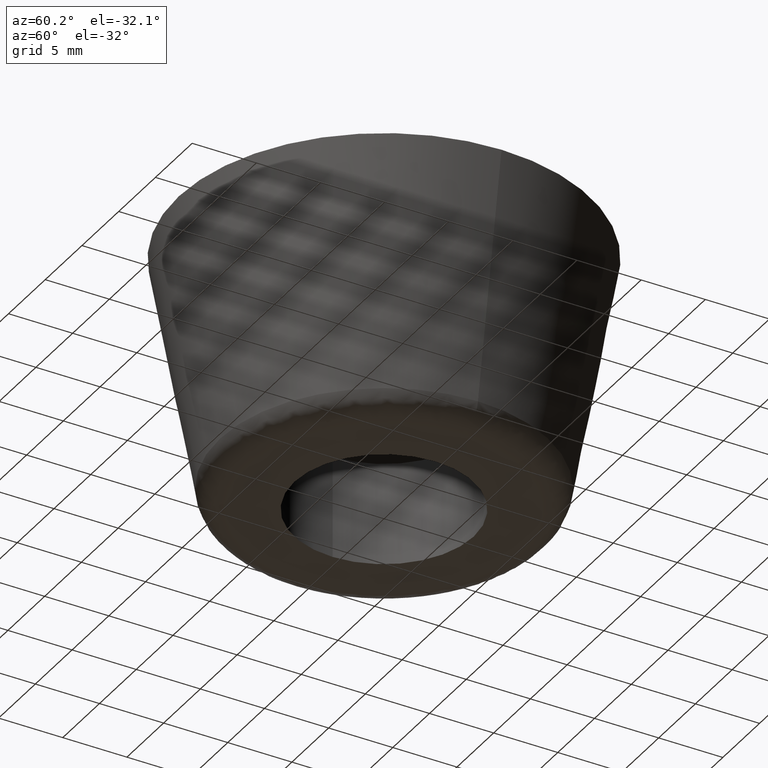
[diagram: clean part render]
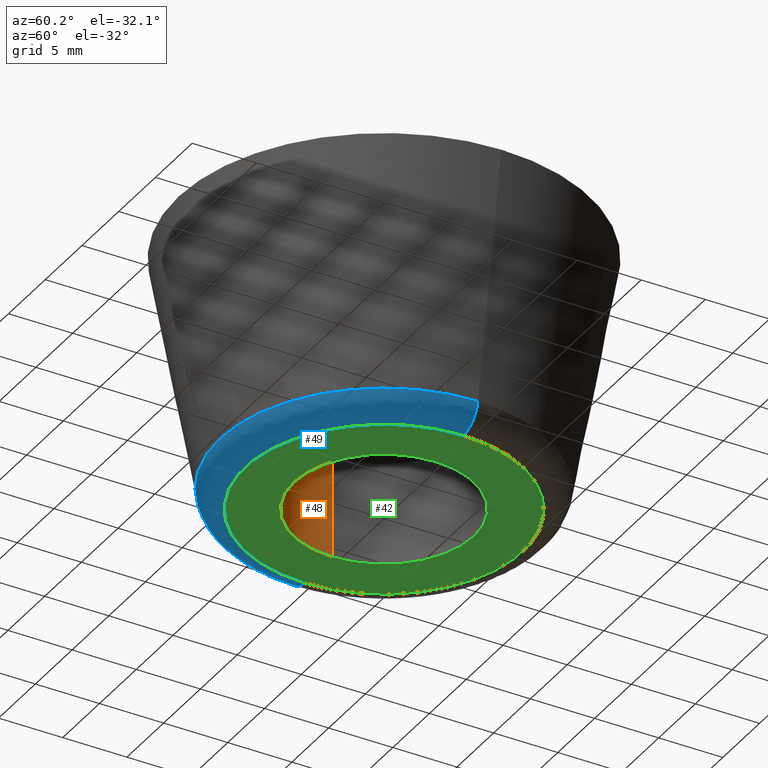
[diagram: same view with three faces highlighted in distinct colors, each labeled with its STEP entity id]
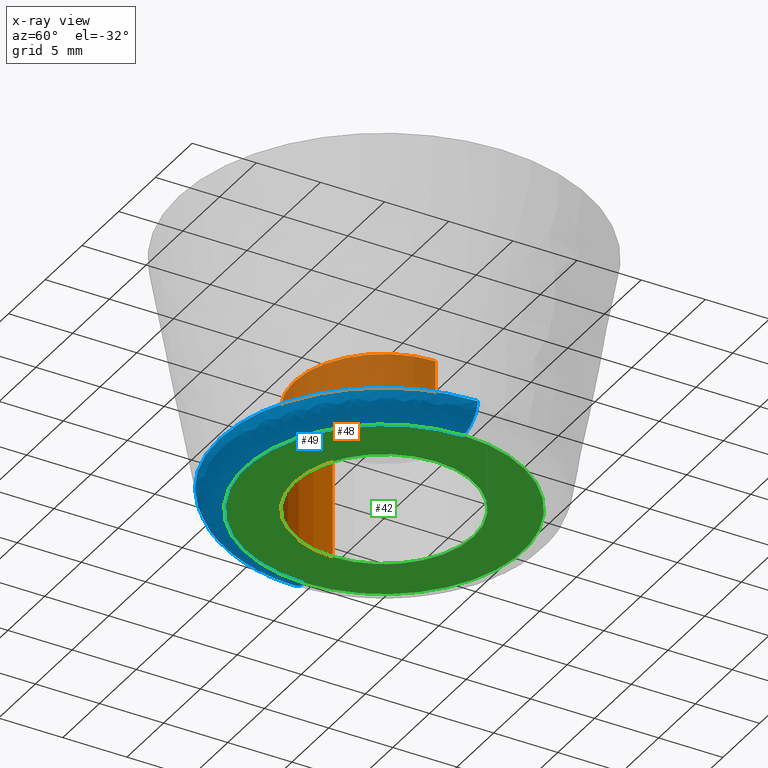
[diagram: x-ray of the same camera — body ghosted, the three highlighted faces saturated]
A machine part, auxiliary view with three faces highlighted in distinct colors.
The next image is the same camera in x-ray (body ghosted, the three faces saturated) — at least one of them is partly hidden behind the body in this view.
Their STEP definitions:

[orange] entity #48 — the highlighted cylindrical surface (partial cylindrical patch) has radius 7 mm, axis along (0, -0, 1).
#48=ADVANCED_FACE('',(#135),#134,.F.);
#134=CYLINDRICAL_SURFACE('',#222,7.00000000000E+00);
#135=FACE_OUTER_BOUND('',#223,.T.);
#219=CARTESIAN_POINT('',(-3.55271367880E-14,0.00000000000E+00,0.00000000000E+00));
#220=DIRECTION('',(0.00000000000E+00,-0.00000000000E+00,1.00000000000E+00));
#221=DIRECTION('',(1.00000000000E+00,-0.00000000000E+00,-0.00000000000E+00));
#222=AXIS2_PLACEMENT_3D('',#219,#220,#221);
#223=EDGE_LOOP('',(#308,#309,#310,#311));
#308=ORIENTED_EDGE('',*,*,#325,.F.);
#309=ORIENTED_EDGE('',*,*,#338,.F.);
#310=ORIENTED_EDGE('',*,*,#330,.T.);
#311=ORIENTED_EDGE('',*,*,#339,.T.);
#325=EDGE_CURVE('',#371,#370,#378,.T.);
#330=EDGE_CURVE('',#412,#413,#414,.T.);
#338=EDGE_CURVE('',#412,#371,#464,.T.);
#339=EDGE_CURVE('',#413,#370,#470,.T.);
#370=VERTEX_POINT('',#508);
#371=VERTEX_POINT('',#509);
#378=CIRCLE('',#517,7.00000000000E+00);
#412=VERTEX_POINT('',#538);
#413=VERTEX_POINT('',#539);
#414=CIRCLE('',#543,7.00000000000E+00);
#464=(BOUNDED_CURVE() B_SPLINE_CURVE(1,(#566,#567),.UNSPECIFIED.,.F.,.F.) B_SPLINE_CURVE_WITH_KNOTS((2,2),(8.33333366442E-02,9.16666667899E-01),.UNSPECIFIED.) CURVE() GEOMETRIC_REPRESENTATION_ITEM() RATIONAL_B_SPLINE_CURVE((1.00000000000E+00,1.00000000000E+00)) REPRESENTATION_ITEM('') );
#470=(BOUNDED_CURVE() B_SPLINE_CURVE(1,(#568,#569),.UNSPECIFIED.,.F.,.F.) B_SPLINE_CURVE_WITH_KNOTS((2,2),(8.33333333333E-02,9.16666666667E-01),.UNSPECIFIED.) CURVE() GEOMETRIC_REPRESENTATION_ITEM() RATIONAL_B_SPLINE_CURVE((7.50000000000E-01,7.50000000000E-01)) REPRESENTATION_ITEM('') );
#508=CARTESIAN_POINT('',(-7.00000000000E+00,0.00000000000E+00,-1.20000000000E+01));
#509=CARTESIAN_POINT('',(7.00000000000E+00,0.00000000000E+00,-1.20000000000E+01));
#514=CARTESIAN_POINT('',(-3.55271367880E-14,0.00000000000E+00,-1.20000000000E+01));
#515=DIRECTION('',(-0.00000000000E+00,0.00000000000E+00,-1.00000000000E+00));
#516=DIRECTION('',(-1.00000000000E+00,-1.22460635382E-16,0.00000000000E+00));
#517=AXIS2_PLACEMENT_3D('',#514,#515,#516);
#538=CARTESIAN_POINT('',(7.00000000000E+00,0.00000000000E+00,-2.00000000000E+01));
#539=CARTESIAN_POINT('',(-7.00000000000E+00,0.00000000000E+00,-2.00000000000E+01));
#540=CARTESIAN_POINT('',(-3.55271367880E-14,0.00000000000E+00,-2.00000000000E+01));
#541=DIRECTION('',(-0.00000000000E+00,0.00000000000E+00,-1.00000000000E+00));
#542=DIRECTION('',(-1.00000000000E+00,-1.22460635382E-16,0.00000000000E+00));
#543=AXIS2_PLACEMENT_3D('',#540,#541,#542);
#566=CARTESIAN_POINT('',(7.00000000000E+00,0.00000000000E+00,-1.99999999682E+01));
#567=CARTESIAN_POINT('',(7.00000000000E+00,0.00000000000E+00,-1.19999999882E+01));
#568=CARTESIAN_POINT('',(-7.00000000000E+00,-2.96059473233E-16,-2.00000000000E+01));
#569=CARTESIAN_POINT('',(-7.00000000000E+00,-2.96059473233E-16,-1.20000000000E+01));

[blue] entity #49 — the highlighted face is a freeform B-spline surface patch.
#49=ADVANCED_FACE('',(#145),#144,.T.);
#144=( BOUNDED_SURFACE() B_SPLINE_SURFACE( 2,2,((#224,#225,#226,#227,#228),(#229,#230,#231,#232,#233),(#234,#235,#236,#237,#238),(#239,#240,#241,#242,#243),(#244,#245,#246,#247,#248)), .UNSPECIFIED.,.F.,.F.,.F.) B_SPLINE_SURFACE_WITH_KNOTS((3,2,3),(3,2,3),(0.00000000000E+00,5.00000000000E-01,1.00000000000E+00),(0.00000000000E+00,5.00000000000E-01,1.00000000000E+00), .UNSPECIFIED. ) GEOMETRIC_REPRESENTATION_ITEM() RATIONAL_B_SPLINE_SURFACE(((1.00000000000E+00,7.65630567491E-01,1.00000000000E+00,7.65630567491E-01,1.00000000000E+00),(7.07106781187E-01,5.41382566156E-01,7.07106781187E-01,5.41382566156E-01,7.07106781187E-01),(1.00000000000E+00,7.65630567491E-01,1.00000000000E+00,7.65630567491E-01,1.00000000000E+00),(7.07106781187E-01,5.41382566156E-01,7.07106781187E-01,5.41382566156E-01,7.07106781187E-01),(1.00000000000E+00,7.65630567491E-01,1.00000000000E+00,7.65630567491E-01,1.00000000000E+00))) REPRESENTATION_ITEM('') SURFACE() );
#145=FACE_OUTER_BOUND('',#249,.T.);
#224=CARTESIAN_POINT('',(1.27896668839E+01,-1.56623073293E-15,-1.83447606635E+01));
#225=CARTESIAN_POINT('',(1.25000000000E+01,-1.53075794228E-15,-2.00000000000E+01));
#226=CARTESIAN_POINT('',(1.08196059496E+01,-1.32497581917E-15,-2.00000000000E+01));
#227=CARTESIAN_POINT('',(9.13921189915E+00,-1.11919369606E-15,-2.00000000000E+01));
#228=CARTESIAN_POINT('',(8.84954501526E+00,-1.08372090541E-15,-1.83447606635E+01));
#229=CARTESIAN_POINT('',(1.27896668839E+01,-1.27896668839E+01,-1.83447606635E+01));
#230=CARTESIAN_POINT('',(1.25000000000E+01,-1.25000000000E+01,-2.00000000000E+01));
#231=CARTESIAN_POINT('',(1.08196059496E+01,-1.08196059496E+01,-2.00000000000E+01));
#232=CARTESIAN_POINT('',(9.13921189915E+00,-9.13921189915E+00,-2.00000000000E+01));
#233=CARTESIAN_POINT('',(8.84954501526E+00,-8.84954501526E+00,-1.83447606635E+01));
#234=CARTESIAN_POINT('',(-3.54775590219E-14,-1.27896668839E+01,-1.83447606635E+01));
#235=CARTESIAN_POINT('',(-3.54598232123E-14,-1.25000000000E+01,-2.00000000000E+01));
#236=CARTESIAN_POINT('',(-3.53569355490E-14,-1.08196059496E+01,-2.00000000000E+01));
#237=CARTESIAN_POINT('',(-3.52540478856E-14,-9.13921189915E+00,-2.00000000000E+01));
#238=CARTESIAN_POINT('',(-3.52363120761E-14,-8.84954501526E+00,-1.83447606635E+01));
#239=CARTESIAN_POINT('',(-1.27896668839E+01,-1.27896668839E+01,-1.83447606635E+01));
#240=CARTESIAN_POINT('',(-1.25000000000E+01,-1.25000000000E+01,-2.00000000000E+01));
#241=CARTESIAN_POINT('',(-1.08196059496E+01,-1.08196059496E+01,-2.00000000000E+01));
#242=CARTESIAN_POINT('',(-9.13921189915E+00,-9.13921189915E+00,-2.00000000000E+01));
#243=CARTESIAN_POINT('',(-8.84954501526E+00,-8.84954501526E+00,-1.83447606635E+01));
#244=CARTESIAN_POINT('',(-1.27896668839E+01,-5.17282233454E-20,-1.83447606635E+01));
#245=CARTESIAN_POINT('',(-1.25000000000E+01,-5.05566562198E-20,-2.00000000000E+01));
#246=CARTESIAN_POINT('',(-1.08196059496E+01,-4.37602478745E-20,-2.00000000000E+01));
#247=CARTESIAN_POINT('',(-9.13921189915E+00,-3.69638395284E-20,-2.00000000000E+01));
#248=CARTESIAN_POINT('',(-8.84954501526E+00,-3.57922724032E-20,-1.83447606635E+01));
#249=EDGE_LOOP('',(#312,#313,#314,#315));
#312=ORIENTED_EDGE('',*,*,#329,.F.);
#313=ORIENTED_EDGE('',*,*,#340,.F.);
#314=ORIENTED_EDGE('',*,*,#333,.T.);
#315=ORIENTED_EDGE('',*,*,#341,.T.);
#329=EDGE_CURVE('',#399,#398,#406,.T.);
#333=EDGE_CURVE('',#433,#426,#434,.T.);
#340=EDGE_CURVE('',#433,#399,#476,.T.);
#341=EDGE_CURVE('',#426,#398,#482,.T.);
#398=VERTEX_POINT('',#528);
#399=VERTEX_POINT('',#529);
#406=CIRCLE('',#537,1.08196059496E+01);
#426=VERTEX_POINT('',#548);
#433=VERTEX_POINT('',#551);
#434=CIRCLE('',#555,1.27896668839E+01);
#476=(BOUNDED_CURVE() B_SPLINE_CURVE(2,(#570,#571,#572),.UNSPECIFIED.,.F.,.F.) B_SPLINE_CURVE_WITH_KNOTS((3,3),(0.00000000000E+00,5.00000000000E-01),.UNSPECIFIED.) CURVE() GEOMETRIC_REPRESENTATION_ITEM() RATIONAL_B_SPLINE_CURVE((1.00000000000E+00,7.65630567491E-01,1.00000000000E+00)) REPRESENTATION_ITEM('') );
#482=(BOUNDED_CURVE() B_SPLINE_CURVE(3,(#573,#574,#575,#576,#577),.UNSPECIFIED.,.F.,.F.) B_SPLINE_CURVE_WITH_KNOTS((4,1,4),(0.00000000000E+00,2.50000001530E-01,5.00000002731E-01),.UNSPECIFIED.) CURVE() GEOMETRIC_REPRESENTATION_ITEM() RATIONAL_B_SPLINE_CURVE((1.00000000000E+00,1.00000000000E+00,1.00000000000E+00,1.00000000000E+00,1.00000000000E+00)) REPRESENTATION_ITEM('') );
#528=CARTESIAN_POINT('',(-1.08196059496E+01,0.00000000000E+00,-2.00000000000E+01));
#529=CARTESIAN_POINT('',(1.08196059496E+01,5.92118946467E-16,-2.00000000000E+01));
#534=CARTESIAN_POINT('',(-3.55271367880E-14,0.00000000000E+00,-2.00000000000E+01));
#535=DIRECTION('',(-0.00000000000E+00,0.00000000000E+00,-1.00000000000E+00));
#536=DIRECTION('',(-1.00000000000E+00,-1.22460635382E-16,0.00000000000E+00));
#537=AXIS2_PLACEMENT_3D('',#534,#535,#536);
#548=CARTESIAN_POINT('',(-1.27896668839E+01,0.00000000000E+00,-1.83447606635E+01));
#551=CARTESIAN_POINT('',(1.27896668839E+01,0.00000000000E+00,-1.83447606635E+01));
#552=CARTESIAN_POINT('',(-3.55271367880E-14,0.00000000000E+00,-1.83447606635E+01));
#553=DIRECTION('',(-0.00000000000E+00,0.00000000000E+00,-1.00000000000E+00));
#554=DIRECTION('',(-1.00000000000E+00,-1.22460635382E-16,0.00000000000E+00));
#555=AXIS2_PLACEMENT_3D('',#552,#553,#554);
#570=CARTESIAN_POINT('',(1.27896668839E+01,-1.56623073293E-15,-1.83447606635E+01));
#571=CARTESIAN_POINT('',(1.25000000000E+01,-1.53075794228E-15,-2.00000000000E+01));
#572=CARTESIAN_POINT('',(1.08196059496E+01,-1.32497581917E-15,-2.00000000000E+01));
#573=CARTESIAN_POINT('',(-1.27896668839E+01,1.77635683940E-15,-1.83447606635E+01));
#574=CARTESIAN_POINT('',(-1.27126759136E+01,1.71371037529E-15,-1.88007398711E+01));
#575=CARTESIAN_POINT('',(-1.22149804941E+01,1.51951110708E-15,-1.96607706444E+01));
#576=CARTESIAN_POINT('',(-1.12820310758E+01,1.28371762880E-15,-2.00027633989E+01));
#577=CARTESIAN_POINT('',(-1.08196059355E+01,1.18423788950E-15,-2.00000000000E+01));

[green] entity #42 — the highlighted planar face has unit normal (-0, 0, -1).
#42=ADVANCED_FACE('',(#74,#75),#73,.T.);
#73=PLANE('',#179);
#74=FACE_OUTER_BOUND('',#180,.T.);
#75=FACE_BOUND('',#181,.T.);
#176=CARTESIAN_POINT('',(2.48850936840E+01,-2.24881286670E+01,-2.00000000000E+01));
#177=DIRECTION('',(-0.00000000000E+00,0.00000000000E+00,-1.00000000000E+00));
#178=DIRECTION('',(-1.00000000000E+00,0.00000000000E+00,0.00000000000E+00));
#179=AXIS2_PLACEMENT_3D('',#176,#177,#178);
#180=EDGE_LOOP('',(#284,#285));
#181=EDGE_LOOP('',(#286,#287));
#284=ORIENTED_EDGE('',*,*,#328,.T.);
#285=ORIENTED_EDGE('',*,*,#329,.T.);
#286=ORIENTED_EDGE('',*,*,#330,.F.);
#287=ORIENTED_EDGE('',*,*,#331,.F.);
#328=EDGE_CURVE('',#398,#399,#400,.T.);
#329=EDGE_CURVE('',#399,#398,#406,.T.);
#330=EDGE_CURVE('',#412,#413,#414,.T.);
#331=EDGE_CURVE('',#413,#412,#420,.T.);
#398=VERTEX_POINT('',#528);
#399=VERTEX_POINT('',#529);
#400=CIRCLE('',#533,1.08196059496E+01);
#406=CIRCLE('',#537,1.08196059496E+01);
#412=VERTEX_POINT('',#538);
#413=VERTEX_POINT('',#539);
#414=CIRCLE('',#543,7.00000000000E+00);
#420=CIRCLE('',#547,7.00000000000E+00);
#528=CARTESIAN_POINT('',(-1.08196059496E+01,0.00000000000E+00,-2.00000000000E+01));
#529=CARTESIAN_POINT('',(1.08196059496E+01,5.92118946467E-16,-2.00000000000E+01));
#530=CARTESIAN_POINT('',(-3.55271367880E-14,0.00000000000E+00,-2.00000000000E+01));
#531=DIRECTION('',(-0.00000000000E+00,0.00000000000E+00,-1.00000000000E+00));
#532=DIRECTION('',(-1.00000000000E+00,-1.22460635382E-16,0.00000000000E+00));
#533=AXIS2_PLACEMENT_3D('',#530,#531,#532);
#534=CARTESIAN_POINT('',(-3.55271367880E-14,0.00000000000E+00,-2.00000000000E+01));
#535=DIRECTION('',(-0.00000000000E+00,0.00000000000E+00,-1.00000000000E+00));
#536=DIRECTION('',(-1.00000000000E+00,-1.22460635382E-16,0.00000000000E+00));
#537=AXIS2_PLACEMENT_3D('',#534,#535,#536);
#538=CARTESIAN_POINT('',(7.00000000000E+00,0.00000000000E+00,-2.00000000000E+01));
#539=CARTESIAN_POINT('',(-7.00000000000E+00,0.00000000000E+00,-2.00000000000E+01));
#540=CARTESIAN_POINT('',(-3.55271367880E-14,0.00000000000E+00,-2.00000000000E+01));
#541=DIRECTION('',(-0.00000000000E+00,0.00000000000E+00,-1.00000000000E+00));
#542=DIRECTION('',(-1.00000000000E+00,-1.22460635382E-16,0.00000000000E+00));
#543=AXIS2_PLACEMENT_3D('',#540,#541,#542);
#544=CARTESIAN_POINT('',(-3.55271367880E-14,0.00000000000E+00,-2.00000000000E+01));
#545=DIRECTION('',(-0.00000000000E+00,0.00000000000E+00,-1.00000000000E+00));
#546=DIRECTION('',(-1.00000000000E+00,-1.22460635382E-16,0.00000000000E+00));
#547=AXIS2_PLACEMENT_3D('',#544,#545,#546);